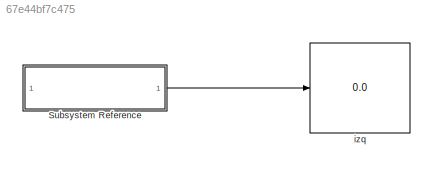
MODEL slx_67e44bf7c475
KIND model
CONFIG AbsTol = auto
CONFIG EnableMultiTasking = on
CONFIG FixedStep = auto
CONFIG MaxStep = auto
CONFIG MinStep = auto
CONFIG RelTol = 1e-3
CONFIG SampleTimeConstraint = Unconstrained
CONFIG SolverName = FixedStepAuto
CONFIG StartTime = 0.0
CONFIG StopTime = inf
BLOCK [SubSystem] Subsystem Reference
  ReferencedSubsystem = sensores
BLOCK [Display] izq
  Decimation = 1
LINE Subsystem Reference:1 -> izq:1
